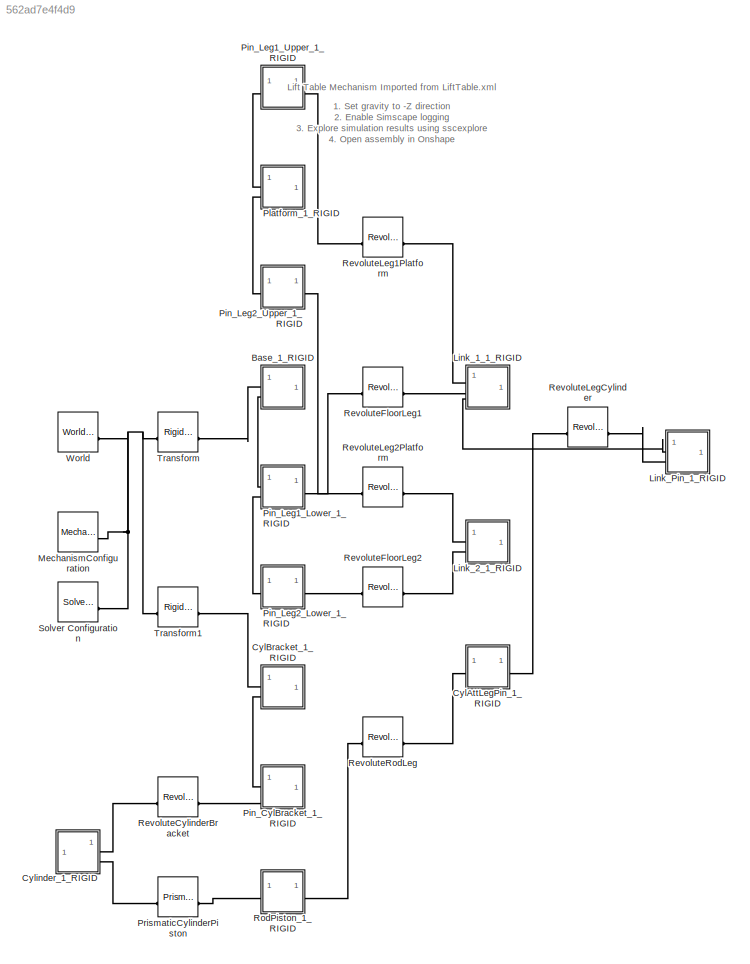
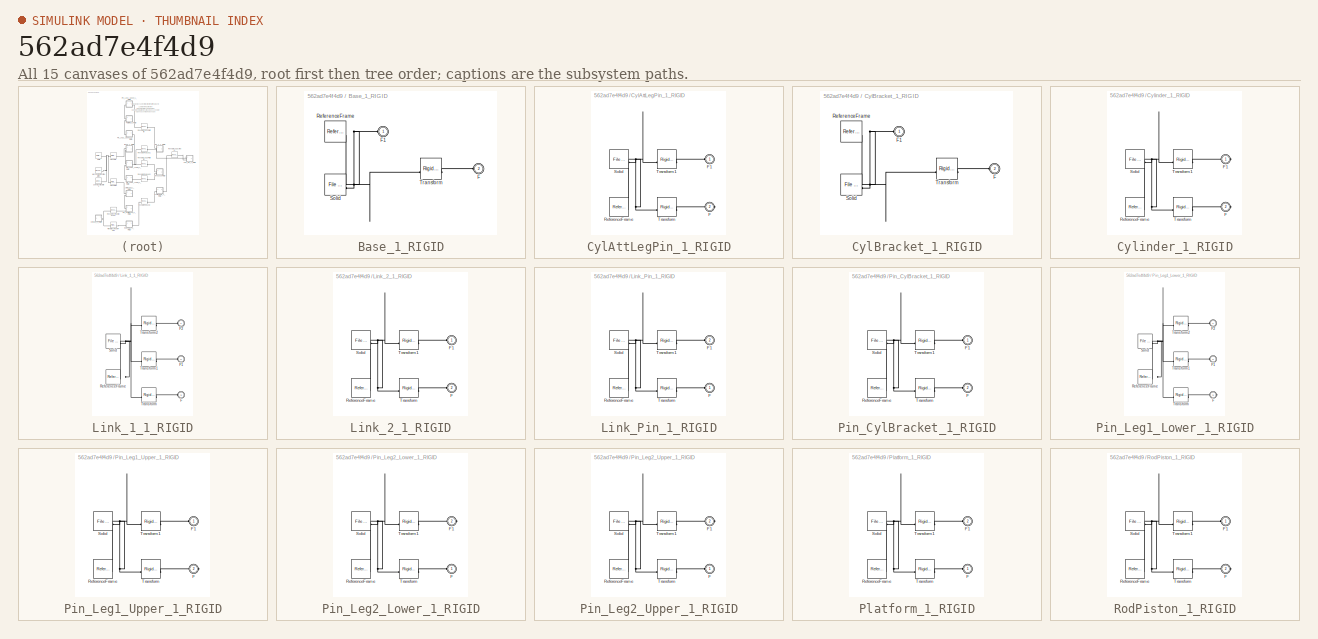
[diagram: thumbnail index - all 15 canvases of the model, root first then tree order]
MODEL slx_562ad7e4f4d9
KIND model
CONFIG SolverName = VariableStepAuto
WORKSPACE source: external: MATLAB File  (data not in archive)
BLOCK [SubSystem] Base_1_RIGID
BLOCK [PMIOPort] Base_1_RIGID/F
  Port = 2
  Side = Left
BLOCK [PMIOPort] Base_1_RIGID/F1
  Side = Left
BLOCK [Reference] Base_1_RIGID/ReferenceFrame  REF=sm_lib/Frames and
Transforms/Reference
Frame
  SourceBlock = sm_lib/Frames and\nTransforms/Reference\nFrame
  SourceType = Reference\nFrame
BLOCK [Reference] Base_1_RIGID/Solid  REF=sm_lib/Body Elements/File Solid
  SourceBlock = sm_lib/Body Elements/File Solid
  SourceType = File Solid
BLOCK [Reference] Base_1_RIGID/Transform  REF=sm_lib/Frames and
Transforms/Rigid
Transform
  SourceBlock = sm_lib/Frames and\nTransforms/Rigid\nTransform
  SourceType = Rigid\nTransform
BLOCK [SubSystem] CylAttLegPin_1_RIGID
BLOCK [PMIOPort] CylAttLegPin_1_RIGID/F
  Port = 2
  Side = Right
BLOCK [PMIOPort] CylAttLegPin_1_RIGID/F1
  Side = Left
BLOCK [Reference] CylAttLegPin_1_RIGID/ReferenceFrame  REF=sm_lib/Frames and
Transforms/Reference
Frame
  SourceBlock = sm_lib/Frames and\nTransforms/Reference\nFrame
  SourceType = Reference\nFrame
BLOCK [Reference] CylAttLegPin_1_RIGID/Solid  REF=sm_lib/Body Elements/File Solid
  SourceBlock = sm_lib/Body Elements/File Solid
  SourceType = File Solid
BLOCK [Reference] CylAttLegPin_1_RIGID/Transform  REF=sm_lib/Frames and
Transforms/Rigid
Transform
  SourceBlock = sm_lib/Frames and\nTransforms/Rigid\nTransform
  SourceType = Rigid\nTransform
BLOCK [Reference] CylAttLegPin_1_RIGID/Transform1  REF=sm_lib/Frames and
Transforms/Rigid
Transform
  SourceBlock = sm_lib/Frames and\nTransforms/Rigid\nTransform
  SourceType = Rigid\nTransform
BLOCK [SubSystem] CylBracket_1_RIGID
BLOCK [PMIOPort] CylBracket_1_RIGID/F
  Port = 2
  Side = Left
BLOCK [PMIOPort] CylBracket_1_RIGID/F1
  Side = Left
BLOCK [Reference] CylBracket_1_RIGID/ReferenceFrame  REF=sm_lib/Frames and
Transforms/Reference
Frame
  SourceBlock = sm_lib/Frames and\nTransforms/Reference\nFrame
  SourceType = Reference\nFrame
BLOCK [Reference] CylBracket_1_RIGID/Solid  REF=sm_lib/Body Elements/File Solid
  SourceBlock = sm_lib/Body Elements/File Solid
  SourceType = File Solid
BLOCK [Reference] CylBracket_1_RIGID/Transform  REF=sm_lib/Frames and
Transforms/Rigid
Transform
  SourceBlock = sm_lib/Frames and\nTransforms/Rigid\nTransform
  SourceType = Rigid\nTransform
BLOCK [SubSystem] Cylinder_1_RIGID
BLOCK [PMIOPort] Cylinder_1_RIGID/F
  Port = 2
  Side = Right
BLOCK [PMIOPort] Cylinder_1_RIGID/F1
  Side = Right
BLOCK [Reference] Cylinder_1_RIGID/ReferenceFrame  REF=sm_lib/Frames and
Transforms/Reference
Frame
  SourceBlock = sm_lib/Frames and\nTransforms/Reference\nFrame
  SourceType = Reference\nFrame
BLOCK [Reference] Cylinder_1_RIGID/Solid  REF=sm_lib/Body Elements/File Solid
  SourceBlock = sm_lib/Body Elements/File Solid
  SourceType = File Solid
BLOCK [Reference] Cylinder_1_RIGID/Transform  REF=sm_lib/Frames and
Transforms/Rigid
Transform
  SourceBlock = sm_lib/Frames and\nTransforms/Rigid\nTransform
  SourceType = Rigid\nTransform
BLOCK [Reference] Cylinder_1_RIGID/Transform1  REF=sm_lib/Frames and
Transforms/Rigid
Transform
  SourceBlock = sm_lib/Frames and\nTransforms/Rigid\nTransform
  SourceType = Rigid\nTransform
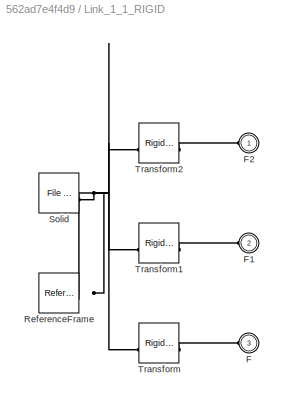
BLOCK [SubSystem] Link_1_1_RIGID
BLOCK [PMIOPort] Link_1_1_RIGID/F
  Port = 3
  Side = Left
BLOCK [PMIOPort] Link_1_1_RIGID/F1
  Port = 2
  Side = Left
BLOCK [PMIOPort] Link_1_1_RIGID/F2
  Side = Left
BLOCK [Reference] Link_1_1_RIGID/ReferenceFrame  REF=sm_lib/Frames and
Transforms/Reference
Frame
  SourceBlock = sm_lib/Frames and\nTransforms/Reference\nFrame
  SourceType = Reference\nFrame
BLOCK [Reference] Link_1_1_RIGID/Solid  REF=sm_lib/Body Elements/File Solid
  SourceBlock = sm_lib/Body Elements/File Solid
  SourceType = File Solid
BLOCK [Reference] Link_1_1_RIGID/Transform  REF=sm_lib/Frames and
Transforms/Rigid
Transform
  SourceBlock = sm_lib/Frames and\nTransforms/Rigid\nTransform
  SourceType = Rigid\nTransform
BLOCK [Reference] Link_1_1_RIGID/Transform1  REF=sm_lib/Frames and
Transforms/Rigid
Transform
  SourceBlock = sm_lib/Frames and\nTransforms/Rigid\nTransform
  SourceType = Rigid\nTransform
BLOCK [Reference] Link_1_1_RIGID/Transform2  REF=sm_lib/Frames and
Transforms/Rigid
Transform
  SourceBlock = sm_lib/Frames and\nTransforms/Rigid\nTransform
  SourceType = Rigid\nTransform
BLOCK [SubSystem] Link_2_1_RIGID
BLOCK [PMIOPort] Link_2_1_RIGID/F
  Port = 2
  Side = Left
BLOCK [PMIOPort] Link_2_1_RIGID/F1
  Side = Left
BLOCK [Reference] Link_2_1_RIGID/ReferenceFrame  REF=sm_lib/Frames and
Transforms/Reference
Frame
  SourceBlock = sm_lib/Frames and\nTransforms/Reference\nFrame
  SourceType = Reference\nFrame
BLOCK [Reference] Link_2_1_RIGID/Solid  REF=sm_lib/Body Elements/File Solid
  SourceBlock = sm_lib/Body Elements/File Solid
  SourceType = File Solid
BLOCK [Reference] Link_2_1_RIGID/Transform  REF=sm_lib/Frames and
Transforms/Rigid
Transform
  SourceBlock = sm_lib/Frames and\nTransforms/Rigid\nTransform
  SourceType = Rigid\nTransform
BLOCK [Reference] Link_2_1_RIGID/Transform1  REF=sm_lib/Frames and
Transforms/Rigid
Transform
  SourceBlock = sm_lib/Frames and\nTransforms/Rigid\nTransform
  SourceType = Rigid\nTransform
BLOCK [SubSystem] Link_Pin_1_RIGID
BLOCK [PMIOPort] Link_Pin_1_RIGID/F
  Side = Left
BLOCK [PMIOPort] Link_Pin_1_RIGID/F1
  Port = 2
  Side = Left
BLOCK [Reference] Link_Pin_1_RIGID/ReferenceFrame  REF=sm_lib/Frames and
Transforms/Reference
Frame
  SourceBlock = sm_lib/Frames and\nTransforms/Reference\nFrame
  SourceType = Reference\nFrame
BLOCK [Reference] Link_Pin_1_RIGID/Solid  REF=sm_lib/Body Elements/File Solid
  SourceBlock = sm_lib/Body Elements/File Solid
  SourceType = File Solid
BLOCK [Reference] Link_Pin_1_RIGID/Transform  REF=sm_lib/Frames and
Transforms/Rigid
Transform
  SourceBlock = sm_lib/Frames and\nTransforms/Rigid\nTransform
  SourceType = Rigid\nTransform
BLOCK [Reference] Link_Pin_1_RIGID/Transform1  REF=sm_lib/Frames and
Transforms/Rigid
Transform
  SourceBlock = sm_lib/Frames and\nTransforms/Rigid\nTransform
  SourceType = Rigid\nTransform
BLOCK [Reference] MechanismConfiguration  REF=sm_lib/Utilities/Mechanism
Configuration
  SourceBlock = sm_lib/Utilities/Mechanism\nConfiguration
  SourceType = Mechanism\nConfiguration
BLOCK [SubSystem] Pin_CylBracket_1_RIGID
BLOCK [PMIOPort] Pin_CylBracket_1_RIGID/F
  Port = 2
  Side = Left
BLOCK [PMIOPort] Pin_CylBracket_1_RIGID/F1
  Side = Left
BLOCK [Reference] Pin_CylBracket_1_RIGID/ReferenceFrame  REF=sm_lib/Frames and
Transforms/Reference
Frame
  SourceBlock = sm_lib/Frames and\nTransforms/Reference\nFrame
  SourceType = Reference\nFrame
BLOCK [Reference] Pin_CylBracket_1_RIGID/Solid  REF=sm_lib/Body Elements/File Solid
  SourceBlock = sm_lib/Body Elements/File Solid
  SourceType = File Solid
BLOCK [Reference] Pin_CylBracket_1_RIGID/Transform  REF=sm_lib/Frames and
Transforms/Rigid
Transform
  SourceBlock = sm_lib/Frames and\nTransforms/Rigid\nTransform
  SourceType = Rigid\nTransform
BLOCK [Reference] Pin_CylBracket_1_RIGID/Transform1  REF=sm_lib/Frames and
Transforms/Rigid
Transform
  SourceBlock = sm_lib/Frames and\nTransforms/Rigid\nTransform
  SourceType = Rigid\nTransform
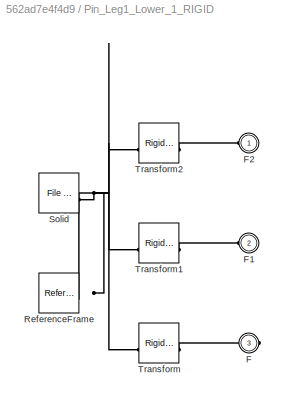
BLOCK [SubSystem] Pin_Leg1_Lower_1_RIGID
BLOCK [PMIOPort] Pin_Leg1_Lower_1_RIGID/F
  Port = 3
  Side = Right
BLOCK [PMIOPort] Pin_Leg1_Lower_1_RIGID/F1
  Port = 2
  Side = Left
BLOCK [PMIOPort] Pin_Leg1_Lower_1_RIGID/F2
  Side = Left
BLOCK [Reference] Pin_Leg1_Lower_1_RIGID/ReferenceFrame  REF=sm_lib/Frames and
Transforms/Reference
Frame
  SourceBlock = sm_lib/Frames and\nTransforms/Reference\nFrame
  SourceType = Reference\nFrame
BLOCK [Reference] Pin_Leg1_Lower_1_RIGID/Solid  REF=sm_lib/Body Elements/File Solid
  SourceBlock = sm_lib/Body Elements/File Solid
  SourceType = File Solid
BLOCK [Reference] Pin_Leg1_Lower_1_RIGID/Transform  REF=sm_lib/Frames and
Transforms/Rigid
Transform
  SourceBlock = sm_lib/Frames and\nTransforms/Rigid\nTransform
  SourceType = Rigid\nTransform
BLOCK [Reference] Pin_Leg1_Lower_1_RIGID/Transform1  REF=sm_lib/Frames and
Transforms/Rigid
Transform
  SourceBlock = sm_lib/Frames and\nTransforms/Rigid\nTransform
  SourceType = Rigid\nTransform
BLOCK [Reference] Pin_Leg1_Lower_1_RIGID/Transform2  REF=sm_lib/Frames and
Transforms/Rigid
Transform
  SourceBlock = sm_lib/Frames and\nTransforms/Rigid\nTransform
  SourceType = Rigid\nTransform
BLOCK [SubSystem] Pin_Leg1_Upper_1_RIGID
BLOCK [PMIOPort] Pin_Leg1_Upper_1_RIGID/F
  Port = 2
  Side = Right
BLOCK [PMIOPort] Pin_Leg1_Upper_1_RIGID/F1
  Side = Left
BLOCK [Reference] Pin_Leg1_Upper_1_RIGID/ReferenceFrame  REF=sm_lib/Frames and
Transforms/Reference
Frame
  SourceBlock = sm_lib/Frames and\nTransforms/Reference\nFrame
  SourceType = Reference\nFrame
BLOCK [Reference] Pin_Leg1_Upper_1_RIGID/Solid  REF=sm_lib/Body Elements/File Solid
  SourceBlock = sm_lib/Body Elements/File Solid
  SourceType = File Solid
BLOCK [Reference] Pin_Leg1_Upper_1_RIGID/Transform  REF=sm_lib/Frames and
Transforms/Rigid
Transform
  SourceBlock = sm_lib/Frames and\nTransforms/Rigid\nTransform
  SourceType = Rigid\nTransform
BLOCK [Reference] Pin_Leg1_Upper_1_RIGID/Transform1  REF=sm_lib/Frames and
Transforms/Rigid
Transform
  SourceBlock = sm_lib/Frames and\nTransforms/Rigid\nTransform
  SourceType = Rigid\nTransform
BLOCK [SubSystem] Pin_Leg2_Lower_1_RIGID
BLOCK [PMIOPort] Pin_Leg2_Lower_1_RIGID/F
  Side = Left
BLOCK [PMIOPort] Pin_Leg2_Lower_1_RIGID/F1
  Port = 2
  Side = Right
BLOCK [Reference] Pin_Leg2_Lower_1_RIGID/ReferenceFrame  REF=sm_lib/Frames and
Transforms/Reference
Frame
  SourceBlock = sm_lib/Frames and\nTransforms/Reference\nFrame
  SourceType = Reference\nFrame
BLOCK [Reference] Pin_Leg2_Lower_1_RIGID/Solid  REF=sm_lib/Body Elements/File Solid
  SourceBlock = sm_lib/Body Elements/File Solid
  SourceType = File Solid
BLOCK [Reference] Pin_Leg2_Lower_1_RIGID/Transform  REF=sm_lib/Frames and
Transforms/Rigid
Transform
  SourceBlock = sm_lib/Frames and\nTransforms/Rigid\nTransform
  SourceType = Rigid\nTransform
BLOCK [Reference] Pin_Leg2_Lower_1_RIGID/Transform1  REF=sm_lib/Frames and
Transforms/Rigid
Transform
  SourceBlock = sm_lib/Frames and\nTransforms/Rigid\nTransform
  SourceType = Rigid\nTransform
BLOCK [SubSystem] Pin_Leg2_Upper_1_RIGID
BLOCK [PMIOPort] Pin_Leg2_Upper_1_RIGID/F
  Side = Left
BLOCK [PMIOPort] Pin_Leg2_Upper_1_RIGID/F1
  Port = 2
  Side = Right
BLOCK [Reference] Pin_Leg2_Upper_1_RIGID/ReferenceFrame  REF=sm_lib/Frames and
Transforms/Reference
Frame
  SourceBlock = sm_lib/Frames and\nTransforms/Reference\nFrame
  SourceType = Reference\nFrame
BLOCK [Reference] Pin_Leg2_Upper_1_RIGID/Solid  REF=sm_lib/Body Elements/File Solid
  SourceBlock = sm_lib/Body Elements/File Solid
  SourceType = File Solid
BLOCK [Reference] Pin_Leg2_Upper_1_RIGID/Transform  REF=sm_lib/Frames and
Transforms/Rigid
Transform
  SourceBlock = sm_lib/Frames and\nTransforms/Rigid\nTransform
  SourceType = Rigid\nTransform
BLOCK [Reference] Pin_Leg2_Upper_1_RIGID/Transform1  REF=sm_lib/Frames and
Transforms/Rigid
Transform
  SourceBlock = sm_lib/Frames and\nTransforms/Rigid\nTransform
  SourceType = Rigid\nTransform
BLOCK [SubSystem] Platform_1_RIGID
BLOCK [PMIOPort] Platform_1_RIGID/F
  Side = Left
BLOCK [PMIOPort] Platform_1_RIGID/F1
  Port = 2
  Side = Left
BLOCK [Reference] Platform_1_RIGID/ReferenceFrame  REF=sm_lib/Frames and
Transforms/Reference
Frame
  SourceBlock = sm_lib/Frames and\nTransforms/Reference\nFrame
  SourceType = Reference\nFrame
BLOCK [Reference] Platform_1_RIGID/Solid  REF=sm_lib/Body Elements/File Solid
  SourceBlock = sm_lib/Body Elements/File Solid
  SourceType = File Solid
BLOCK [Reference] Platform_1_RIGID/Transform  REF=sm_lib/Frames and
Transforms/Rigid
Transform
  SourceBlock = sm_lib/Frames and\nTransforms/Rigid\nTransform
  SourceType = Rigid\nTransform
BLOCK [Reference] Platform_1_RIGID/Transform1  REF=sm_lib/Frames and
Transforms/Rigid
Transform
  SourceBlock = sm_lib/Frames and\nTransforms/Rigid\nTransform
  SourceType = Rigid\nTransform
BLOCK [Reference] PrismaticCylinderPiston  REF=sm_lib/Joints/Prismatic
Joint
  SourceBlock = sm_lib/Joints/Prismatic\nJoint
  SourceType = Prismatic\nJoint
BLOCK [Reference] RevoluteCylinderBracket  REF=sm_lib/Joints/Revolute Joint
  SourceBlock = sm_lib/Joints/Revolute Joint
  SourceType = Revolute Joint
BLOCK [Reference] RevoluteFloorLeg1  REF=sm_lib/Joints/Revolute Joint
  SourceBlock = sm_lib/Joints/Revolute Joint
  SourceType = Revolute Joint
BLOCK [Reference] RevoluteFloorLeg2  REF=sm_lib/Joints/Revolute Joint
  SourceBlock = sm_lib/Joints/Revolute Joint
  SourceType = Revolute Joint
BLOCK [Reference] RevoluteLeg1Platform  REF=sm_lib/Joints/Revolute Joint
  SourceBlock = sm_lib/Joints/Revolute Joint
  SourceType = Revolute Joint
BLOCK [Reference] RevoluteLeg2Platform  REF=sm_lib/Joints/Revolute Joint
  SourceBlock = sm_lib/Joints/Revolute Joint
  SourceType = Revolute Joint
BLOCK [Reference] RevoluteLegCylinder  REF=sm_lib/Joints/Revolute Joint
  SourceBlock = sm_lib/Joints/Revolute Joint
  SourceType = Revolute Joint
BLOCK [Reference] RevoluteRodLeg  REF=sm_lib/Joints/Revolute Joint
  SourceBlock = sm_lib/Joints/Revolute Joint
  SourceType = Revolute Joint
BLOCK [SubSystem] RodPiston_1_RIGID
BLOCK [PMIOPort] RodPiston_1_RIGID/F
  Port = 2
  Side = Right
BLOCK [PMIOPort] RodPiston_1_RIGID/F1
  Side = Left
BLOCK [Reference] RodPiston_1_RIGID/ReferenceFrame  REF=sm_lib/Frames and
Transforms/Reference
Frame
  SourceBlock = sm_lib/Frames and\nTransforms/Reference\nFrame
  SourceType = Reference\nFrame
BLOCK [Reference] RodPiston_1_RIGID/Solid  REF=sm_lib/Body Elements/File Solid
  SourceBlock = sm_lib/Body Elements/File Solid
  SourceType = File Solid
BLOCK [Reference] RodPiston_1_RIGID/Transform  REF=sm_lib/Frames and
Transforms/Rigid
Transform
  SourceBlock = sm_lib/Frames and\nTransforms/Rigid\nTransform
  SourceType = Rigid\nTransform
BLOCK [Reference] RodPiston_1_RIGID/Transform1  REF=sm_lib/Frames and
Transforms/Rigid
Transform
  SourceBlock = sm_lib/Frames and\nTransforms/Rigid\nTransform
  SourceType = Rigid\nTransform
BLOCK [Reference] Solver Configuration  REF=nesl_utility/Solver
Configuration
  SourceBlock = nesl_utility/Solver\nConfiguration
  SourceType = Solver\nConfiguration
BLOCK [Reference] Transform  REF=sm_lib/Frames and
Transforms/Rigid
Transform
  SourceBlock = sm_lib/Frames and\nTransforms/Rigid\nTransform
  SourceType = Rigid\nTransform
BLOCK [Reference] Transform1  REF=sm_lib/Frames and
Transforms/Rigid
Transform
  SourceBlock = sm_lib/Frames and\nTransforms/Rigid\nTransform
  SourceType = Rigid\nTransform
BLOCK [Reference] World  REF=sm_lib/Frames and
Transforms/World Frame
  SourceBlock = sm_lib/Frames and\nTransforms/World Frame
  SourceType = World Frame
ANNOTATION (root): 1. Set gravity to -Z direction 2. Enable Simscape logging 3. Explore simulation results using sscexplore 4. Open assembly in Onshape
ANNOTATION (root): Lift Table Mechanism Imported from LiftTable.xml
PNET net1: Base_1_RIGID/F1:RConn1 -- Base_1_RIGID/ReferenceFrame:RConn1 -- Base_1_RIGID/Solid:RConn1 -- Base_1_RIGID/Transform:LConn1
PLINE Base_1_RIGID/F:RConn1 -- Base_1_RIGID/Transform:RConn1
PLINE Base_1_RIGID:LConn1 -- Transform:RConn1
PLINE Base_1_RIGID:LConn2 -- Pin_Leg1_Lower_1_RIGID:LConn1
PLINE CylAttLegPin_1_RIGID/F1:RConn1 -- CylAttLegPin_1_RIGID/Transform1:RConn1
PLINE CylAttLegPin_1_RIGID/F:RConn1 -- CylAttLegPin_1_RIGID/Transform:RConn1
PNET net2: CylAttLegPin_1_RIGID/ReferenceFrame:RConn1 -- CylAttLegPin_1_RIGID/Solid:RConn1 -- CylAttLegPin_1_RIGID/Transform1:LConn1 -- CylAttLegPin_1_RIGID/Transform:LConn1
PLINE CylAttLegPin_1_RIGID:LConn1 -- RevoluteRodLeg:RConn1
PLINE CylAttLegPin_1_RIGID:RConn1 -- RevoluteLegCylinder:LConn1
PNET net3: CylBracket_1_RIGID/F1:RConn1 -- CylBracket_1_RIGID/ReferenceFrame:RConn1 -- CylBracket_1_RIGID/Solid:RConn1 -- CylBracket_1_RIGID/Transform:LConn1
PLINE CylBracket_1_RIGID/F:RConn1 -- CylBracket_1_RIGID/Transform:RConn1
PLINE CylBracket_1_RIGID:LConn1 -- Transform1:RConn1
PLINE CylBracket_1_RIGID:LConn2 -- Pin_CylBracket_1_RIGID:LConn1
PLINE Cylinder_1_RIGID/F1:RConn1 -- Cylinder_1_RIGID/Transform1:RConn1
PLINE Cylinder_1_RIGID/F:RConn1 -- Cylinder_1_RIGID/Transform:RConn1
PNET net4: Cylinder_1_RIGID/ReferenceFrame:RConn1 -- Cylinder_1_RIGID/Solid:RConn1 -- Cylinder_1_RIGID/Transform1:LConn1 -- Cylinder_1_RIGID/Transform:LConn1
PLINE Cylinder_1_RIGID:RConn1 -- RevoluteCylinderBracket:LConn1
PLINE Cylinder_1_RIGID:RConn2 -- PrismaticCylinderPiston:LConn1
PLINE Link_1_1_RIGID/F1:RConn1 -- Link_1_1_RIGID/Transform1:RConn1
PLINE Link_1_1_RIGID/F2:RConn1 -- Link_1_1_RIGID/Transform2:RConn1
PLINE Link_1_1_RIGID/F:RConn1 -- Link_1_1_RIGID/Transform:RConn1
PNET net5: Link_1_1_RIGID/ReferenceFrame:RConn1 -- Link_1_1_RIGID/Solid:RConn1 -- Link_1_1_RIGID/Transform1:LConn1 -- Link_1_1_RIGID/Transform2:LConn1 -- Link_1_1_RIGID/Transform:LConn1
PLINE Link_1_1_RIGID:LConn1 -- RevoluteLeg1Platform:RConn1
PLINE Link_1_1_RIGID:LConn2 -- RevoluteFloorLeg1:RConn1
PLINE Link_1_1_RIGID:LConn3 -- Link_Pin_1_RIGID:LConn1
PLINE Link_2_1_RIGID/F1:RConn1 -- Link_2_1_RIGID/Transform1:RConn1
PLINE Link_2_1_RIGID/F:RConn1 -- Link_2_1_RIGID/Transform:RConn1
PNET net6: Link_2_1_RIGID/ReferenceFrame:RConn1 -- Link_2_1_RIGID/Solid:RConn1 -- Link_2_1_RIGID/Transform1:LConn1 -- Link_2_1_RIGID/Transform:LConn1
PLINE Link_2_1_RIGID:LConn1 -- RevoluteLeg2Platform:RConn1
PLINE Link_2_1_RIGID:LConn2 -- RevoluteFloorLeg2:RConn1
PLINE Link_Pin_1_RIGID/F1:RConn1 -- Link_Pin_1_RIGID/Transform1:RConn1
PLINE Link_Pin_1_RIGID/F:RConn1 -- Link_Pin_1_RIGID/Transform:RConn1
PNET net7: Link_Pin_1_RIGID/ReferenceFrame:RConn1 -- Link_Pin_1_RIGID/Solid:RConn1 -- Link_Pin_1_RIGID/Transform1:LConn1 -- Link_Pin_1_RIGID/Transform:LConn1
PLINE Link_Pin_1_RIGID:LConn2 -- RevoluteLegCylinder:RConn1
PNET net8: MechanismConfiguration:RConn1 -- Solver Configuration:RConn1 -- Transform1:LConn1 -- Transform:LConn1 -- World:RConn1
PLINE Pin_CylBracket_1_RIGID/F1:RConn1 -- Pin_CylBracket_1_RIGID/Transform1:RConn1
PLINE Pin_CylBracket_1_RIGID/F:RConn1 -- Pin_CylBracket_1_RIGID/Transform:RConn1
PNET net9: Pin_CylBracket_1_RIGID/ReferenceFrame:RConn1 -- Pin_CylBracket_1_RIGID/Solid:RConn1 -- Pin_CylBracket_1_RIGID/Transform1:LConn1 -- Pin_CylBracket_1_RIGID/Transform:LConn1
PLINE Pin_CylBracket_1_RIGID:LConn2 -- RevoluteCylinderBracket:RConn1
PLINE Pin_Leg1_Lower_1_RIGID/F1:RConn1 -- Pin_Leg1_Lower_1_RIGID/Transform1:RConn1
PLINE Pin_Leg1_Lower_1_RIGID/F2:RConn1 -- Pin_Leg1_Lower_1_RIGID/Transform2:RConn1
PLINE Pin_Leg1_Lower_1_RIGID/F:RConn1 -- Pin_Leg1_Lower_1_RIGID/Transform:RConn1
PNET net10: Pin_Leg1_Lower_1_RIGID/ReferenceFrame:RConn1 -- Pin_Leg1_Lower_1_RIGID/Solid:RConn1 -- Pin_Leg1_Lower_1_RIGID/Transform1:LConn1 -- Pin_Leg1_Lower_1_RIGID/Transform2:LConn1 -- Pin_Leg1_Lower_1_RIGID/Transform:LConn1
PLINE Pin_Leg1_Lower_1_RIGID:LConn2 -- Pin_Leg2_Lower_1_RIGID:LConn1
PLINE Pin_Leg1_Lower_1_RIGID:RConn1 -- RevoluteFloorLeg1:LConn1
PLINE Pin_Leg1_Upper_1_RIGID/F1:RConn1 -- Pin_Leg1_Upper_1_RIGID/Transform1:RConn1
PLINE Pin_Leg1_Upper_1_RIGID/F:RConn1 -- Pin_Leg1_Upper_1_RIGID/Transform:RConn1
PNET net11: Pin_Leg1_Upper_1_RIGID/ReferenceFrame:RConn1 -- Pin_Leg1_Upper_1_RIGID/Solid:RConn1 -- Pin_Leg1_Upper_1_RIGID/Transform1:LConn1 -- Pin_Leg1_Upper_1_RIGID/Transform:LConn1
PLINE Pin_Leg1_Upper_1_RIGID:LConn1 -- Platform_1_RIGID:LConn1
PLINE Pin_Leg1_Upper_1_RIGID:RConn1 -- RevoluteLeg1Platform:LConn1
PLINE Pin_Leg2_Lower_1_RIGID/F1:RConn1 -- Pin_Leg2_Lower_1_RIGID/Transform1:RConn1
PLINE Pin_Leg2_Lower_1_RIGID/F:RConn1 -- Pin_Leg2_Lower_1_RIGID/Transform:RConn1
PNET net12: Pin_Leg2_Lower_1_RIGID/ReferenceFrame:RConn1 -- Pin_Leg2_Lower_1_RIGID/Solid:RConn1 -- Pin_Leg2_Lower_1_RIGID/Transform1:LConn1 -- Pin_Leg2_Lower_1_RIGID/Transform:LConn1
PLINE Pin_Leg2_Lower_1_RIGID:RConn1 -- RevoluteFloorLeg2:LConn1
PLINE Pin_Leg2_Upper_1_RIGID/F1:RConn1 -- Pin_Leg2_Upper_1_RIGID/Transform1:RConn1
PLINE Pin_Leg2_Upper_1_RIGID/F:RConn1 -- Pin_Leg2_Upper_1_RIGID/Transform:RConn1
PNET net13: Pin_Leg2_Upper_1_RIGID/ReferenceFrame:RConn1 -- Pin_Leg2_Upper_1_RIGID/Solid:RConn1 -- Pin_Leg2_Upper_1_RIGID/Transform1:LConn1 -- Pin_Leg2_Upper_1_RIGID/Transform:LConn1
PLINE Pin_Leg2_Upper_1_RIGID:LConn1 -- Platform_1_RIGID:LConn2
PLINE Pin_Leg2_Upper_1_RIGID:RConn1 -- RevoluteLeg2Platform:LConn1
PLINE Platform_1_RIGID/F1:RConn1 -- Platform_1_RIGID/Transform1:RConn1
PLINE Platform_1_RIGID/F:RConn1 -- Platform_1_RIGID/Transform:RConn1
PNET net14: Platform_1_RIGID/ReferenceFrame:RConn1 -- Platform_1_RIGID/Solid:RConn1 -- Platform_1_RIGID/Transform1:LConn1 -- Platform_1_RIGID/Transform:LConn1
PLINE PrismaticCylinderPiston:RConn1 -- RodPiston_1_RIGID:LConn1
PLINE RevoluteRodLeg:LConn1 -- RodPiston_1_RIGID:RConn1
PLINE RodPiston_1_RIGID/F1:RConn1 -- RodPiston_1_RIGID/Transform1:RConn1
PLINE RodPiston_1_RIGID/F:RConn1 -- RodPiston_1_RIGID/Transform:RConn1
PNET net15: RodPiston_1_RIGID/ReferenceFrame:RConn1 -- RodPiston_1_RIGID/Solid:RConn1 -- RodPiston_1_RIGID/Transform1:LConn1 -- RodPiston_1_RIGID/Transform:LConn1
note: PNET lines group multi-terminal physical nets as a canonical sorted terminal list (undirected conserving connections); 2-terminal nets keep the pairwise PLINE form
